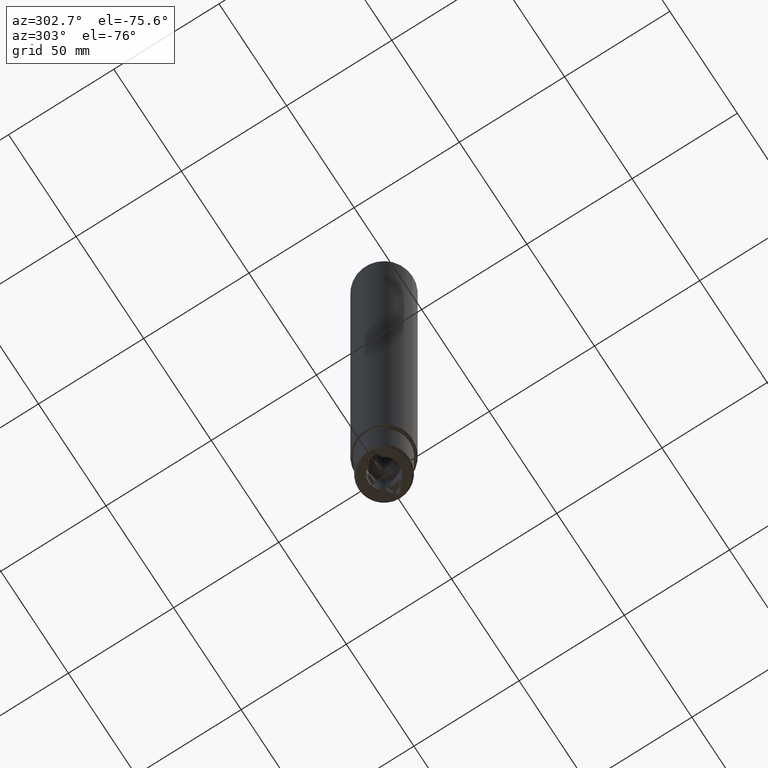
[diagram: clean part render]
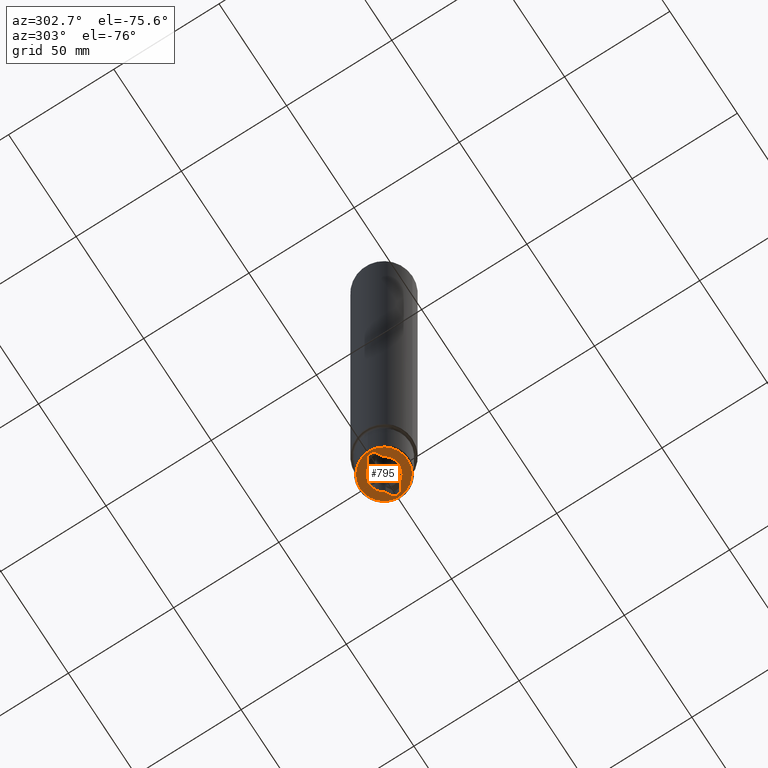
[diagram: same view with one face highlighted and labeled with its STEP entity id]
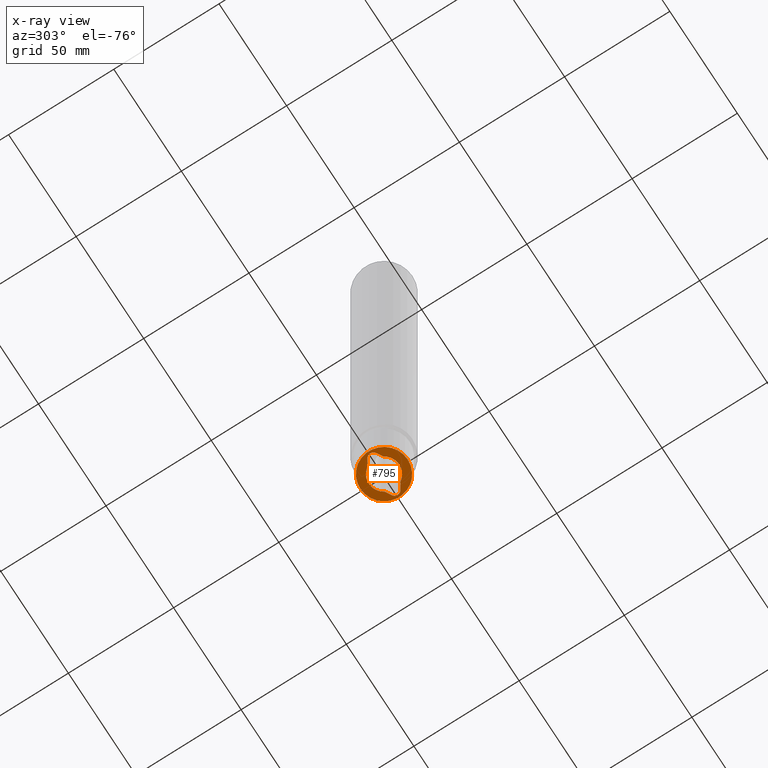
[diagram: x-ray of the same camera — body ghosted, the highlighted face saturated]
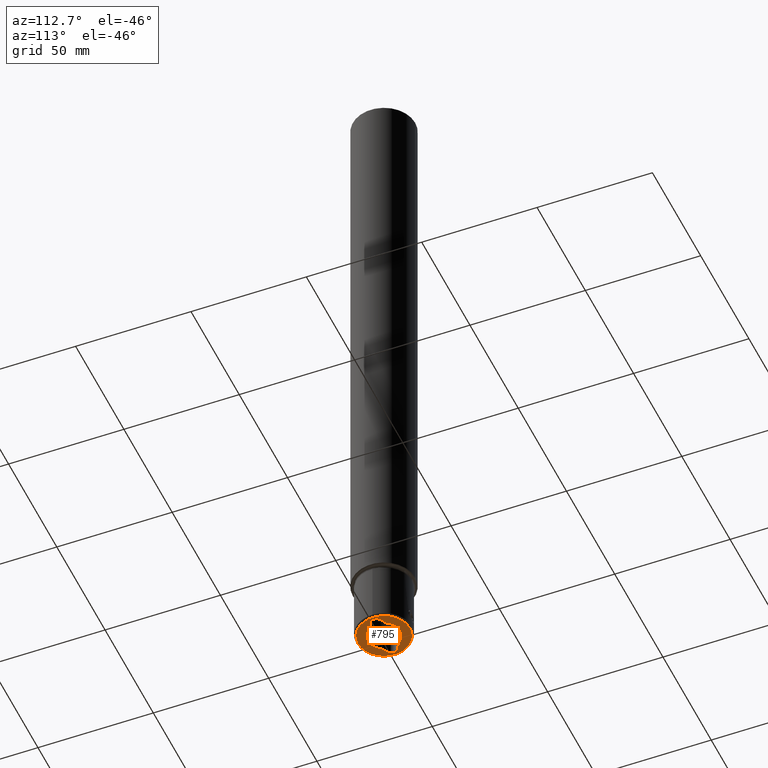
[diagram: same view with one face highlighted and labeled with its STEP entity id]
A machine part, auxiliary view. The second image highlights one B-rep face of the part: STEP entity #795.
The next image is the same camera in x-ray: the body ghosted, the highlighted face saturated — about 0% of this face is hidden behind the body in this view.
A second angle (auxiliary view) of the same face is appended — the face is thin or edge-on in the first view.
In plain terms, the highlighted planar face has unit normal (0, 0, -1).
Its self-contained STEP definition (entity closure, byte-faithful):
#443=EDGE_CURVE('NONE',#875,#985,#1203,.T.);
#447=VERTEX_POINT('NONE',#1207);
#469=VERTEX_POINT('NONE',#1231);
#521=VERTEX_POINT('NONE',#1290);
#557=EDGE_CURVE('NONE',#785,#1063,#1330,.T.);
#569=EDGE_CURVE('NONE',#851,#447,#1343,.T.);
#639=EDGE_CURVE('NONE',#469,#867,#1421,.T.);
#655=EDGE_CURVE('NONE',#811,#937,#1439,.T.);
#767=EDGE_CURVE('NONE',#1063,#851,#1557,.T.);
#785=VERTEX_POINT('NONE',#1578);
#795=ADVANCED_FACE('NONE',(#1591,#1592),#1593,.T.);
#801=EDGE_CURVE('NONE',#937,#811,#1599,.T.);
#811=VERTEX_POINT('NONE',#1610);
#819=EDGE_CURVE('NONE',#521,#985,#1618,.T.);
#821=VERTEX_POINT('NONE',#1620);
#851=VERTEX_POINT('NONE',#1651);
#867=VERTEX_POINT('NONE',#1671);
#875=VERTEX_POINT('NONE',#1679);
#937=VERTEX_POINT('NONE',#1752);
#985=VERTEX_POINT('NONE',#1804);
#991=EDGE_CURVE('NONE',#875,#785,#1811,.T.);
#1037=EDGE_CURVE('NONE',#867,#521,#1864,.T.);
#1063=VERTEX_POINT('',#1894);
#1073=EDGE_CURVE('NONE',#821,#469,#1904,.T.);
#1103=EDGE_CURVE('NONE',#821,#447,#1935,.T.);
#1203=CIRCLE('',#2051,7.25);
#1207=CARTESIAN_POINT('',(6.26983106300843,-3.64029098305816,1.38777878078145E-014));
#1231=CARTESIAN_POINT('',(-8.97500000000001,-2.07846096908264,1.38777878078145E-014));
#1290=CARTESIAN_POINT('',(-8.97499999999999,2.07846096908267,1.38777878078145E-014));
#1330=CIRCLE('',#2253,2.4);
#1343=LINE('',#2300,#2301);
#1421=CIRCLE('',#2417,2.4);
#1439=CIRCLE('',#2445,11.25);
#1557=CIRCLE('',#2612,2.4);
#1578=CARTESIAN_POINT('',(8.975,2.07846096908265,1.38777878078145E-014));
#1591=FACE_OUTER_BOUND('',#2653,.T.);
#1592=FACE_BOUND('',#2654,.T.);
#1593=PLANE('',#2655);
#1599=CIRCLE('',#2663,11.25);
#1610=CARTESIAN_POINT('',(-2.90598790606699E-014,11.25,1.38777878078145E-014));
#1618=LINE('',#2689,#2690);
#1620=CARTESIAN_POINT('',(-6.26983106300844,-3.64029098305815,1.38777878078145E-014));
#1651=CARTESIAN_POINT('',(8.97500000000001,-2.07846096908266,1.38777878078145E-014));
#1671=CARTESIAN_POINT('',(-10.175,1.00504411574285E-014,1.38777878078145E-014));
#1679=CARTESIAN_POINT('',(6.26983106300846,3.64029098305811,1.38777878078145E-014));
#1752=CARTESIAN_POINT('',(2.76362741743514E-014,-11.25,1.38777878078145E-014));
#1804=CARTESIAN_POINT('',(-6.26983106300846,3.64029098305812,1.38777878078145E-014));
#1811=LINE('',#2956,#2957);
#1864=CIRCLE('',#3053,2.4);
#1894=CARTESIAN_POINT('',(10.175,-1.03443466823459E-014,1.38777878078145E-014));
#1904=LINE('',#3132,#3133);
#1935=CIRCLE('',#3178,7.25);
#2051=AXIS2_PLACEMENT_3D('',#3315,#3316,#3317);
#2253=AXIS2_PLACEMENT_3D('',#3470,#3471,#3472);
#2300=CARTESIAN_POINT('',(8.97500000000001,-2.07846096908266,1.38777878078145E-014));
#2301=VECTOR('',#3486,1000.0);
#2417=AXIS2_PLACEMENT_3D('',#3578,#3579,#3580);
#2445=AXIS2_PLACEMENT_3D('',#3604,#3605,#3606);
#2612=AXIS2_PLACEMENT_3D('',#3709,#3710,#3711);
#2653=EDGE_LOOP('',(#3773,#3774));
#2654=EDGE_LOOP('',(#3775,#3776,#3777,#3778,#3779,#3780,#3781,#3782,#3783,#3784));
#2655=AXIS2_PLACEMENT_3D('',#3785,#3786,#3787);
#2663=AXIS2_PLACEMENT_3D('',#3791,#3792,#3793);
#2689=CARTESIAN_POINT('',(-8.97499999999999,2.07846096908267,1.38777878078145E-014));
#2690=VECTOR('',#3816,1000.0);
#2956=CARTESIAN_POINT('',(3.91474596215556,5.0,1.38777878078145E-014));
#2957=VECTOR('',#4052,1000.0);
#3053=AXIS2_PLACEMENT_3D('',#4121,#4122,#4123);
#3132=CARTESIAN_POINT('',(-3.91474596215564,-5.0,1.38777878078145E-014));
#3133=VECTOR('',#4167,1000.0);
#3178=AXIS2_PLACEMENT_3D('',#4194,#4195,#4196);
#3315=CARTESIAN_POINT('',(0.0,0.0,1.38777878078145E-014));
#3316=DIRECTION('',(0.0,0.0,1.0));
#3317=DIRECTION('',(1.0,-9.87758344710422E-016,-0.0));
#3470=CARTESIAN_POINT('',(7.77500000000001,-7.67982113012354E-015,1.38777878078145E-014));
#3471=DIRECTION('',(0.0,0.0,-1.0));
#3472=DIRECTION('',(-1.0,9.87758344710421E-016,0.0));
#3486=DIRECTION('',(-0.866025403784438,-0.5,0.0));
#3578=CARTESIAN_POINT('',(-7.775,7.67982113012353E-015,1.38777878078145E-014));
#3579=DIRECTION('',(0.0,0.0,-1.0));
#3580=DIRECTION('',(-1.0,9.8775834471042E-016,0.0));
#3604=CARTESIAN_POINT('',(0.0,0.0,1.38777878078145E-014));
#3605=DIRECTION('',(0.0,0.0,-1.0));
#3606=DIRECTION('',(2.50372501639896E-015,-1.0,0.0));
#3709=CARTESIAN_POINT('',(7.77500000000001,-7.67982113012354E-015,1.38777878078145E-014));
#3710=DIRECTION('',(0.0,0.0,-1.0));
#3711=DIRECTION('',(-1.0,9.87758344710421E-016,0.0));
#3773=ORIENTED_EDGE('',*,*,#655,.T.);
#3774=ORIENTED_EDGE('',*,*,#801,.T.);
#3775=ORIENTED_EDGE('',*,*,#819,.F.);
#3776=ORIENTED_EDGE('',*,*,#1037,.F.);
#3777=ORIENTED_EDGE('',*,*,#639,.F.);
#3778=ORIENTED_EDGE('',*,*,#1073,.F.);
#3779=ORIENTED_EDGE('',*,*,#1103,.T.);
#3780=ORIENTED_EDGE('',*,*,#569,.F.);
#3781=ORIENTED_EDGE('',*,*,#767,.F.);
#3782=ORIENTED_EDGE('',*,*,#557,.F.);
#3783=ORIENTED_EDGE('',*,*,#991,.F.);
#3784=ORIENTED_EDGE('',*,*,#443,.T.);
#3785=CARTESIAN_POINT('',(0.0,0.0,1.38777878078145E-014));
#3786=DIRECTION('',(0.0,0.0,-1.0));
#3787=DIRECTION('',(-1.22464679914735E-016,1.0,0.0));
#3791=CARTESIAN_POINT('',(0.0,0.0,1.38777878078145E-014));
#3792=DIRECTION('',(0.0,0.0,-1.0));
#3793=DIRECTION('',(2.50372501639896E-015,-1.0,0.0));
#3816=DIRECTION('',(0.866025403784442,0.499999999999994,0.0));
#4052=DIRECTION('',(0.866025403784441,-0.499999999999996,-0.0));
#4121=CARTESIAN_POINT('',(-7.775,7.67982113012353E-015,1.38777878078145E-014));
#4122=DIRECTION('',(0.0,0.0,-1.0));
#4123=DIRECTION('',(-1.0,9.8775834471042E-016,0.0));
#4167=DIRECTION('',(-0.866025403784438,0.500000000000002,0.0));
#4194=CARTESIAN_POINT('',(0.0,0.0,1.38777878078145E-014));
#4195=DIRECTION('',(0.0,0.0,1.0));
#4196=DIRECTION('',(1.0,-9.87758344710422E-016,-0.0));